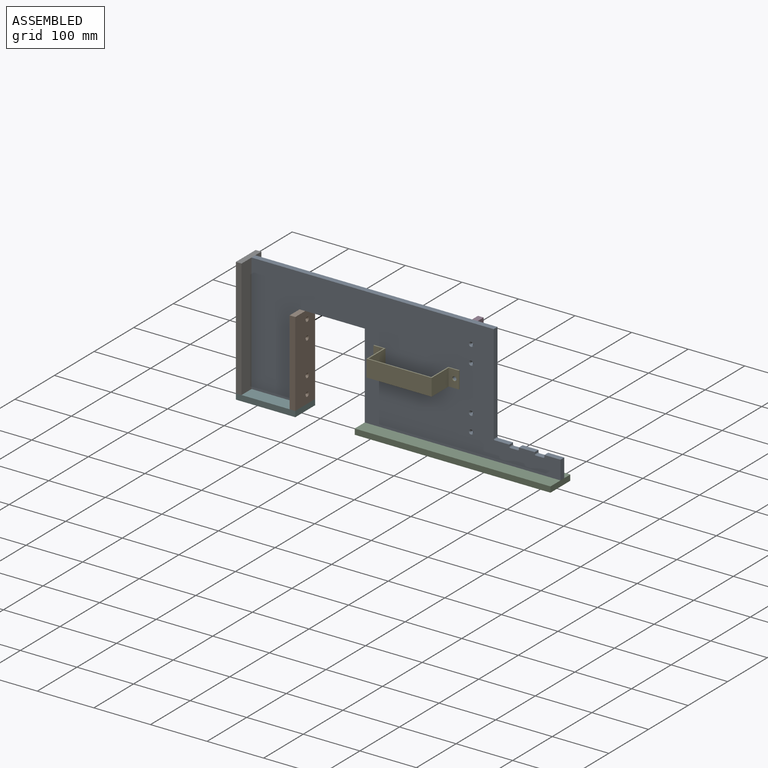
[diagram: assembled view]
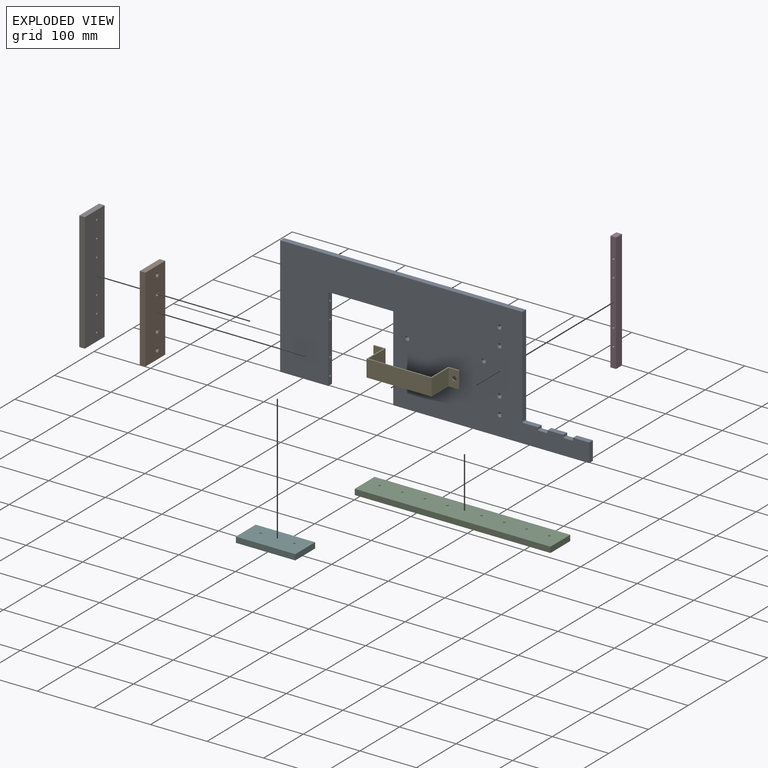
[diagram: exploded view]
GUIDED TOUR — MATED ASSEMBLY (Onshape document 2476796da958db2ca3bd45b9, AutoMate assembly 2476796da958db2ca3bd45b9_22bd7b3173679dbf847a679c_6d49762769f953038dab6788_default)

This assembly has 7 components, labeled P0..P6 below (a component is one placed occurrence of a part; the same part can appear more than once), held together by 14 mates. A mate is a constraint between two components; its type names the relative motion it leaves free:
  PARALLEL — keeps the two listed directions parallel,
  PLANAR — leaves sliding in the plane through the listed point (normal = the listed direction) and rotation about that normal free,
  SLIDER — leaves translation along the listed axis free.
Axis/direction vectors are unit vectors and 'through' points are millimeter coordinates, both in the assembly's world frame.

MATES
  1. PLANAR "Planar 3": P0 <-> P6, direction (-1.000, 0.000, 0.000) through (-434.63, 94.90, -322.70) mm
  2. PLANAR "Planar 6": P4 <-> P0, direction (0.000, 1.000, 0.000) through (-207.79, 90.18, -314.34) mm
  3. SLIDER "Slider 2": P6 <-> P0, axis (-1.000, 0.000, 0.000) through (-444.63, 94.90, -412.70) mm
  4. SLIDER "Slider 3": P2 <-> P0, axis (0.000, 0.000, -1.000) through (-211.63, 94.93, -437.70) mm
  5. PLANAR "Planar 2": P2 <-> P0, direction (0.000, 0.000, 1.000) through (-61.62, 89.92, -427.70) mm
  6. PLANAR "Planar 1": P5 <-> P0, direction (0.000, 0.000, 1.000) through (-392.12, 89.88, -427.70) mm
  7. SLIDER "Slider 11": P4 <-> P0, axis (0.000, -1.000, 0.000) through (-74.87, 88.19, -314.34) mm
  8. SLIDER "Slider 1": P0 <-> P5, axis (0.000, 0.000, -1.000) through (-422.13, 94.90, -427.70) mm
  9. SLIDER "Slider 10": P3 <-> P0, axis (0.000, -1.000, 0.000) through (-46.63, 99.70, -392.70) mm
  10. PLANAR "Planar 5": P0 <-> P3, direction (0.000, 1.000, 0.000) through (-191.30, 99.68, -320.28) mm
  11. SLIDER "Slider 9": P3 <-> P0, axis (0.000, -1.000, 0.000) through (-46.63, 99.70, -252.70) mm
  12. PLANAR "Planar 4": P0 <-> P1, direction (1.000, 0.000, 0.000) through (-349.63, 94.91, -352.70) mm
  13. PARALLEL "Parallel 1": P4 <-> P0, direction (-1.000, 0.000, 0.000) through (-217.87, 89.18, -314.34) mm
  14. SLIDER "Slider 8": P0 <-> P1, axis (1.000, 0.000, 0.000) through (-349.63, 94.91, -412.70) mm

ASSEMBLY ORDER
  1. P4 — the base component [order verified]
  2. P0 [order verified]
  3. P1 [order verified]
  4. P3 [order verified]
  5. P6 [order verified]
  6. P2 [order verified]
  7. P5 [order verified]
Order-tag legend:
  [order verified] — this step's position reverses a verified removal order: the component was checked to insert without passing through the ones already placed.

Of the 7 components, 2 carry the full construction recipe — the FeatureScript program that regenerates the part's solid from scratch; the rest are supplied as boundary geometry only.
Each toured component is shown spotlighted twice — in the assembled view, then in the exploded view, where a leader line traces a displaced component back to its assembled socket (saturated green if recipe-attached, orange if geometry-only; every other component desaturated gray) — followed by its recipe or geometry summary and the mates that hold it.
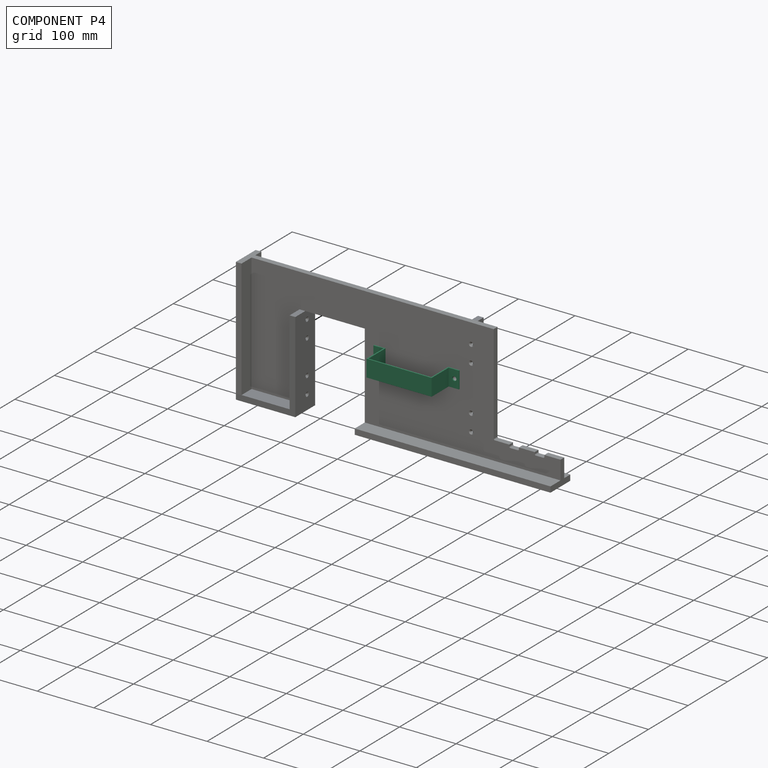
[diagram: component P4 — assembled]
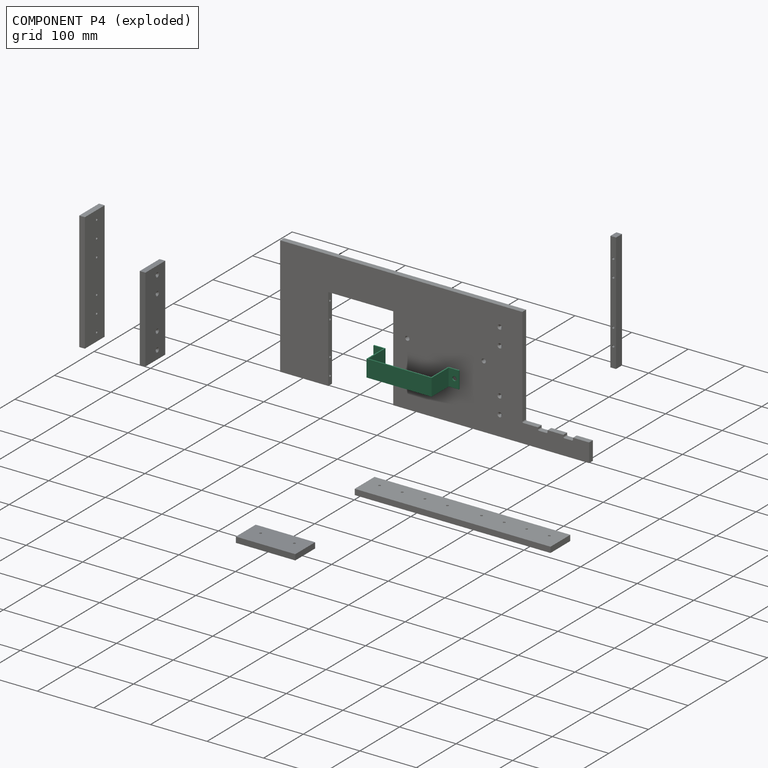
[diagram: component P4 — exploded]
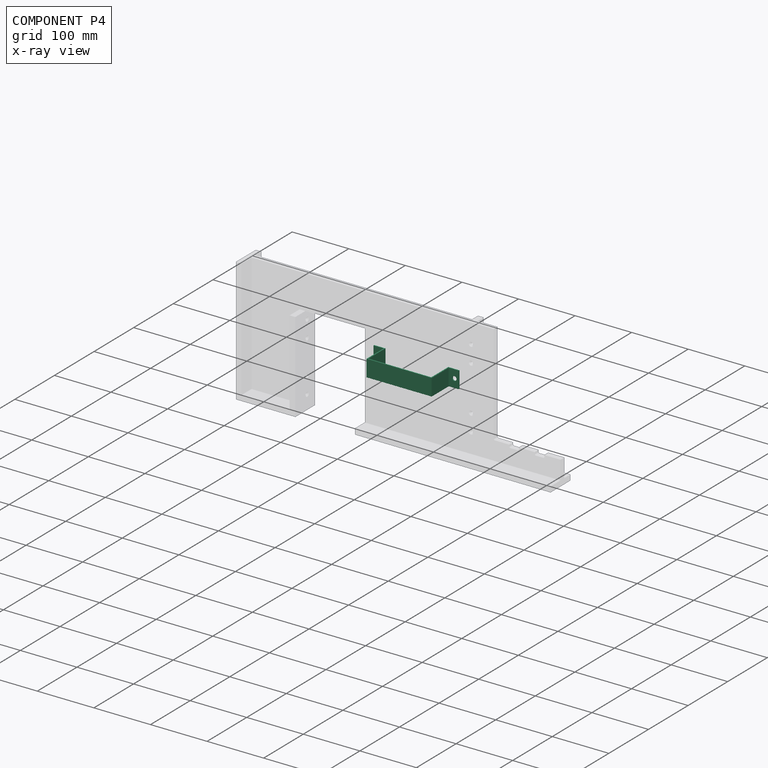
[diagram: component P4 — x-ray view]
COMPONENT P4 — recipe-attached (CADFS 00985563, mesh-verified: the recipe's output STEP matches this component's geometry to below the mesh-comparison resolution (tessellation chordal tolerance ~0.241 mm)).
Held by: PLANAR mate "Planar 6" to P0; SLIDER mate "Slider 11" to P0; PARALLEL mate "Parallel 1" to P0.
Construction recipe (FeatureScript — the CAD program that rebuilds this solid; sketch coordinates are in the units given by the * unit suffixes, e.g. mm):

FeatureScript 1511;
import(path : "onshape/std/geometry.fs", version : "1511.0");
import(path : "onshape/std/common.fs", version : "1511.0");
const mm = millimeter;
const VERTEX = EntityType.VERTEX;
const EDGE = EntityType.EDGE;
const FACE = EntityType.FACE;
const BODY = EntityType.BODY;
function v(x, y){return vector(x, y);}
function OD(order){return orderDisambiguation(order);}
function OSD(set){return originalSetDisambiguation(set);}
function TD(topology){return topologyDisambiguation(topology);}
function TDD(query){return trueDependencyDisambiguation(query);}
function sQuery(a, b, c) {return sketchEntityQuery(a, b, c);}

annotation { "Feature Type Name" : "Feature", "Feature Type Description" : "" }
export const myFeature = defineFeature(function(context is Context, id is Id, definition is map)
    precondition{}
    {
        {
            var Q0;
            Q0=qCreatedBy(makeId("Top.planeOp"),FACE);
            var sketch = newSketch(context, id + "F0", { "sketchPlane" : qUnion([Q0])});
            skLineSegment(sketch, "E0", {"start": v(-29.34, 22.52) * mm, "end": v(-11.34, 22.52) * mm});
            skLineSegment(sketch, "E1", {"start": v(-11.34, 22.52) * mm, "end": v(-11.34, 65.52) * mm});
            skLineSegment(sketch, "E2", {"start": v(-11.34, 65.52) * mm, "end": v(103.66, 65.52) * mm});
            skLineSegment(sketch, "E3", {"start": v(103.66, 65.52) * mm, "end": v(103.66, 22.52) * mm});
            skLineSegment(sketch, "E4", {"start": v(103.66, 22.52) * mm, "end": v(121.66, 22.52) * mm});
            skLineSegment(sketch, "E5", {"start": v(121.66, 22.52) * mm, "end": v(121.66, 20.52) * mm});
            skLineSegment(sketch, "E6", {"start": v(121.66, 20.52) * mm, "end": v(101.66, 20.52) * mm});
            skLineSegment(sketch, "E7", {"start": v(101.66, 20.52) * mm, "end": v(101.66, 63.52) * mm});
            skLineSegment(sketch, "E8", {"start": v(101.66, 63.52) * mm, "end": v(-9.34, 63.52) * mm});
            skLineSegment(sketch, "E9", {"start": v(-9.34, 63.52) * mm, "end": v(-9.34, 20.52) * mm});
            skLineSegment(sketch, "E10", {"start": v(-9.34, 20.52) * mm, "end": v(-29.34, 20.52) * mm});
            skLineSegment(sketch, "E11", {"start": v(-29.34, 20.52) * mm, "end": v(-29.34, 22.52) * mm});
            skSolve(sketch);
        }
        {
            var Q0;
            Q0 = qSketchRegion(id + "F0", true);
            extrude(context, id + "F1", {"entities" : qUnion([Q0]), "depth" : 30 * mm, "offsetDistance" : 25.4 * mm});
        }
        {
            var Q0;
            Q0=makeQuery(id+"F1.opExtrude","SWEPT_FACE",FACE,{"disambiguationData":[OSD([sQuery(id+"F0.wireOp",EDGE,"E0")])]});
            var sketch = newSketch(context, id + "F2", { "sketchPlane" : qUnion([Q0])});
            skCircle(sketch, "E12", {"center": v(20.34, 15) * mm, "radius": 3.76 * mm});
            skPoint(sketch, "E12.centerSnap0", {"position": v(20.34, 0) * mm});
            skPoint(sketch, "E12.centerSnap1", {"position": v(29.34, 15) * mm});
            skCircle(sketch, "E13", {"center": v(-113.66, 15) * mm, "radius": 3.68 * mm});
            skSolve(sketch);
        }
        {
            var Q0;
            Q0 = qSketchRegion(id + "F2", true);
            extrude(context, id + "F3", {"entities" : qUnion([Q0]), "operationType" : NewBodyOperationType.REMOVE, "endBound" : BoundingType.THROUGH_ALL, "oppositeDirection" : true, "depth" : 25.4 * mm, "offsetDistance" : 25.4 * mm});
        }
    });
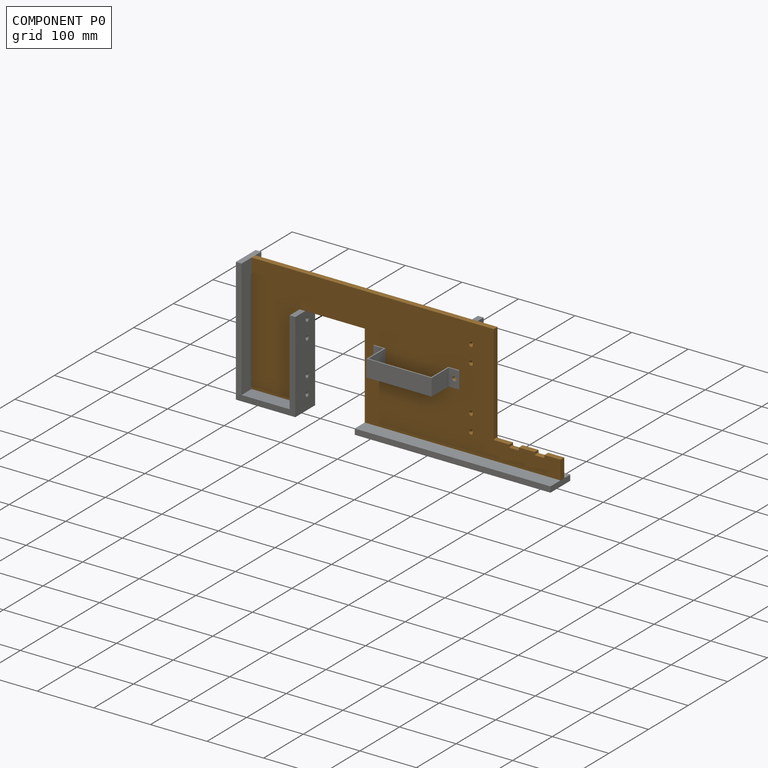
[diagram: component P0 — assembled]
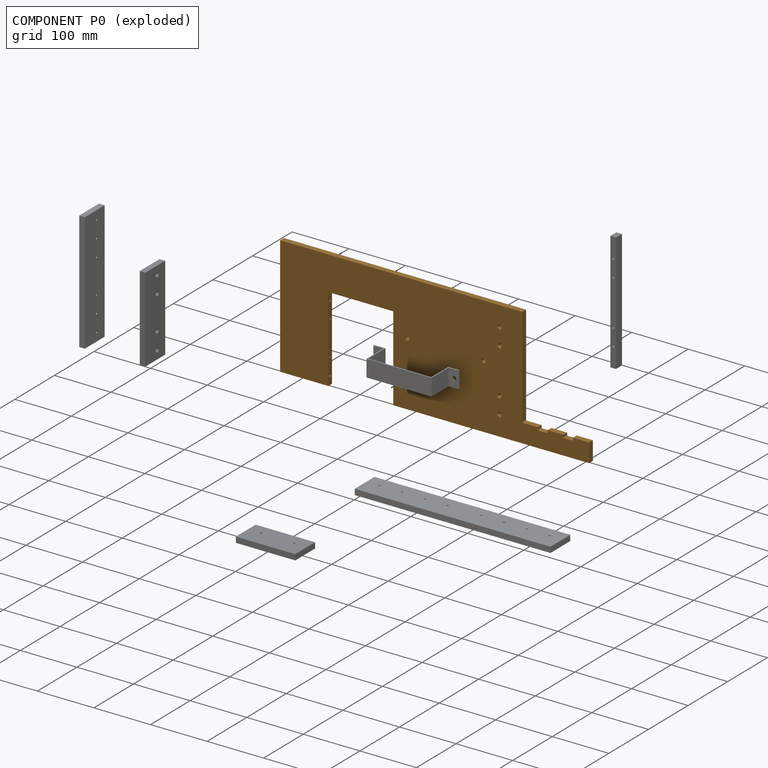
[diagram: component P0 — exploded]
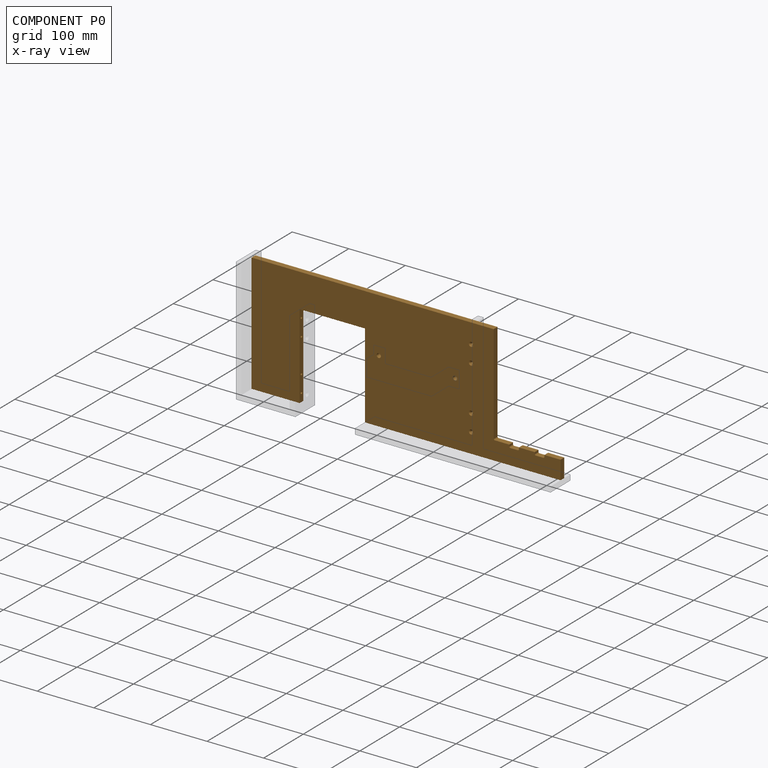
[diagram: component P0 — x-ray view]
COMPONENT P0 — geometry summary (no construction recipe available for this part):
  bounding box: 546.0 x 210.0 x 9.5 mm
  B-rep topology: 1 solid, 73 faces, 326 edges
  volume: 720226 mm^3 (66% of its bounding box)
  symmetry: mirror-symmetric across its y mid-plane
Held by: PLANAR mate "Planar 3" to P6; PLANAR mate "Planar 6" to P4; SLIDER mate "Slider 2" to P6; SLIDER mate "Slider 3" to P2; PLANAR mate "Planar 2" to P2; PLANAR mate "Planar 1" to P5; SLIDER mate "Slider 11" to P4; SLIDER mate "Slider 1" to P5; SLIDER mate "Slider 10" to P3; PLANAR mate "Planar 5" to P3; SLIDER mate "Slider 9" to P3; PLANAR mate "Planar 4" to P1; PARALLEL mate "Parallel 1" to P4; SLIDER mate "Slider 8" to P1.
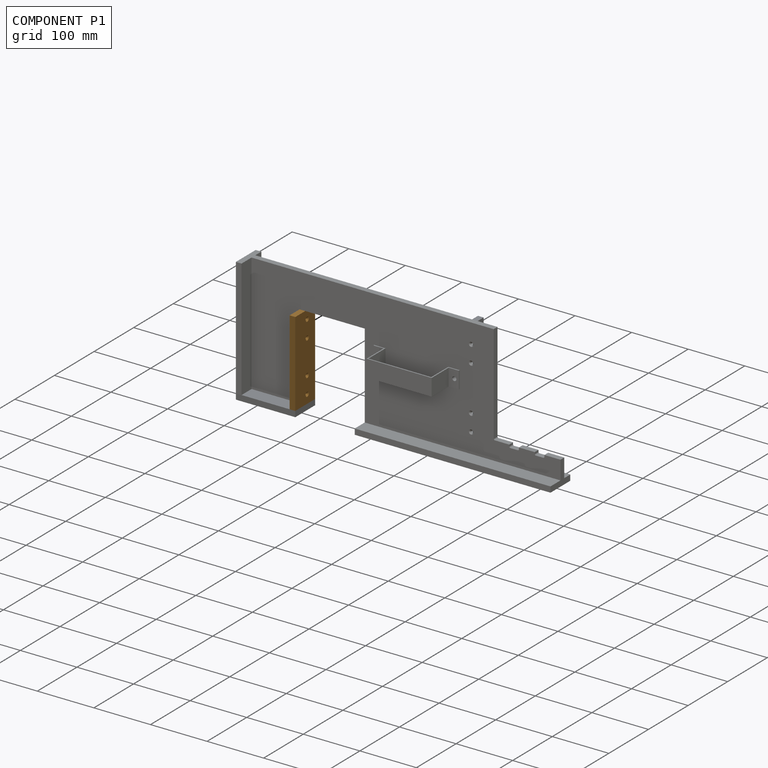
[diagram: component P1 — assembled]
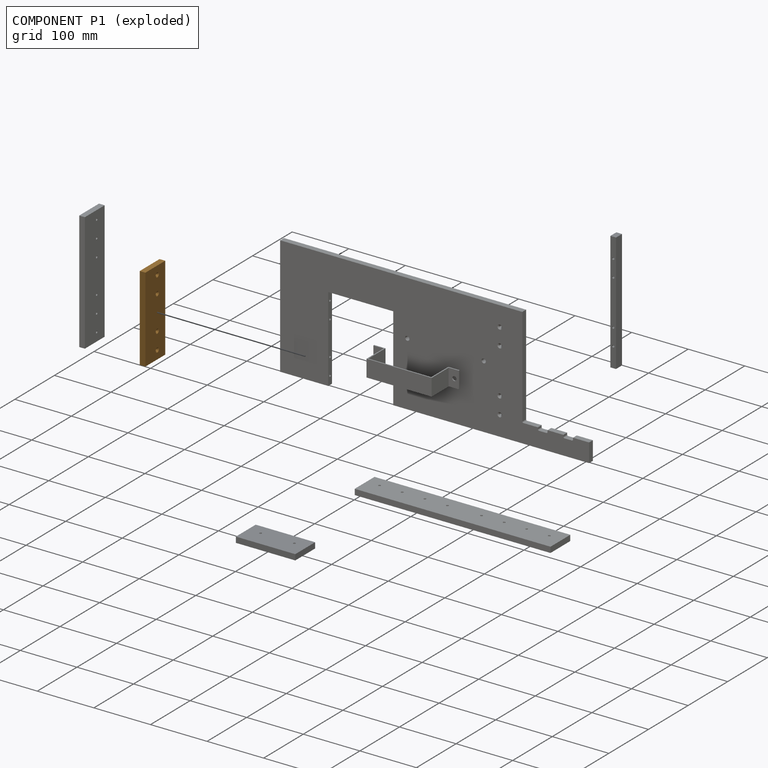
[diagram: component P1 — exploded]
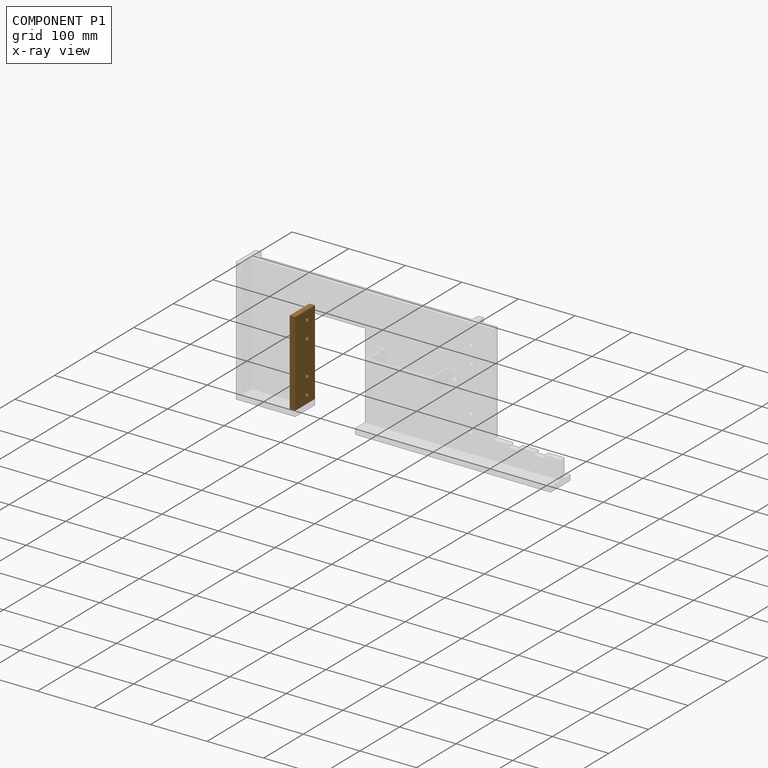
[diagram: component P1 — x-ray view]
COMPONENT P1 — geometry summary (no construction recipe available for this part):
  bounding box: 150.0 x 50.0 x 10.0 mm
  B-rep topology: 1 solid, 14 faces, 64 edges
  volume: 74363 mm^3 (99% of its bounding box)
  symmetry: mirror-symmetric across its x mid-plane
Held by: PLANAR mate "Planar 4" to P0; SLIDER mate "Slider 8" to P0.
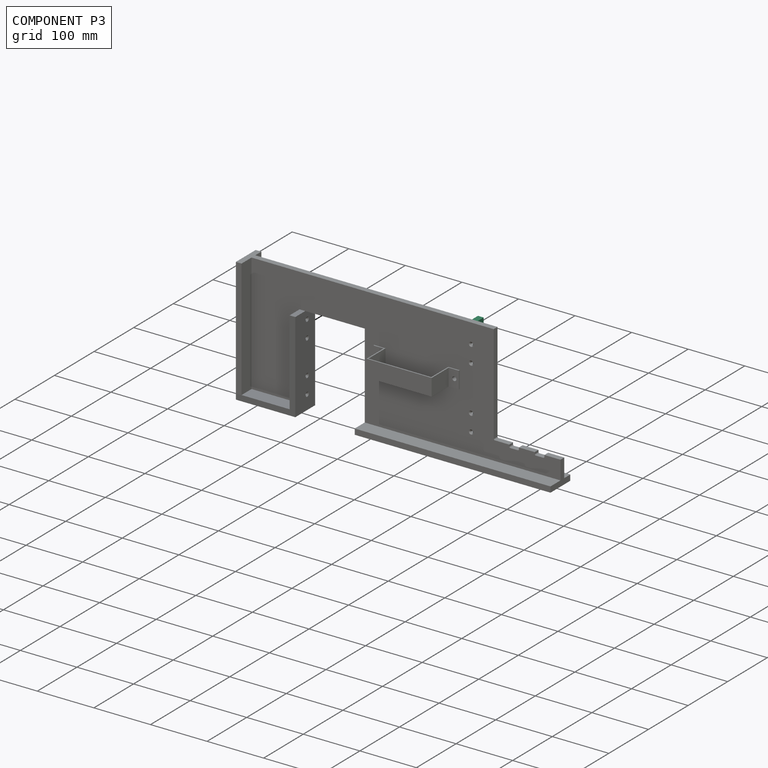
[diagram: component P3 — assembled]
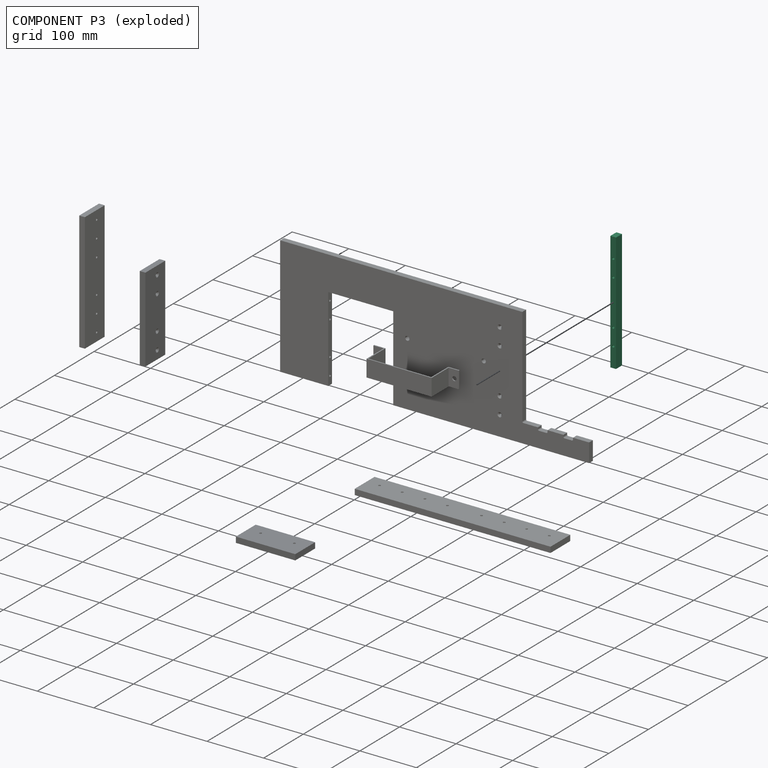
[diagram: component P3 — exploded]
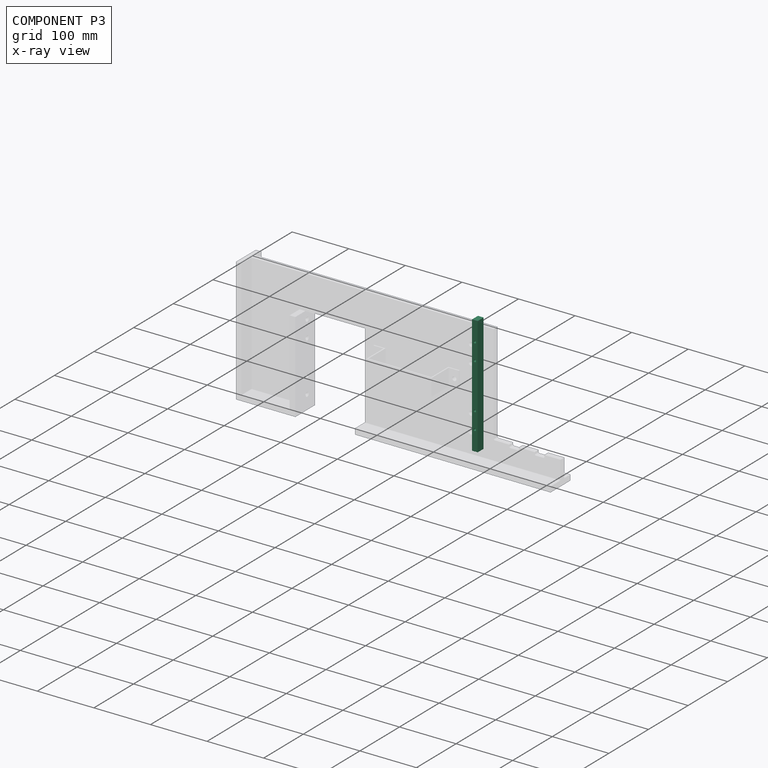
[diagram: component P3 — x-ray view]
COMPONENT P3 — recipe-attached (CADFS 00985557, mesh-verified: the recipe's output STEP matches this component's geometry to below the mesh-comparison resolution (tessellation chordal tolerance ~0.316 mm)).
Held by: SLIDER mate "Slider 10" to P0; PLANAR mate "Planar 5" to P0; SLIDER mate "Slider 9" to P0.
Construction recipe (FeatureScript — the CAD program that rebuilds this solid; sketch coordinates are in the units given by the * unit suffixes, e.g. mm):

FeatureScript 1511;
import(path : "onshape/std/geometry.fs", version : "1511.0");
import(path : "onshape/std/common.fs", version : "1511.0");
const mm = millimeter;
const VERTEX = EntityType.VERTEX;
const EDGE = EntityType.EDGE;
const FACE = EntityType.FACE;
const BODY = EntityType.BODY;
function v(x, y){return vector(x, y);}
function OD(order){return orderDisambiguation(order);}
function OSD(set){return originalSetDisambiguation(set);}
function TD(topology){return topologyDisambiguation(topology);}
function TDD(query){return trueDependencyDisambiguation(query);}
function sQuery(a, b, c) {return sketchEntityQuery(a, b, c);}

annotation { "Feature Type Name" : "Feature", "Feature Type Description" : "" }
export const myFeature = defineFeature(function(context is Context, id is Id, definition is map)
    precondition{}
    {
        {
            var Q0;
            Q0=qCreatedBy(makeId("Top.planeOp"),FACE);
            var sketch = newSketch(context, id + "F0", { "sketchPlane" : qUnion([Q0])});
            skLineSegment(sketch, "E0.bottom", {"start": v(105, -7.5) * mm, "end": v(-105, -7.5) * mm});
            skLineSegment(sketch, "E0.top", {"start": v(105, 7.5) * mm, "end": v(-105, 7.5) * mm});
            skLineSegment(sketch, "E0.left", {"start": v(105, -7.5) * mm, "end": v(105, 7.5) * mm});
            skLineSegment(sketch, "E0.right", {"start": v(-105, -7.5) * mm, "end": v(-105, 7.5) * mm});
            skPoint(sketch, "E0.middle", {"position": v(0, 0) * mm});
            skSolve(sketch);
        }
        {
            var Q0;
            Q0=makeQuery(id+"F0.imprint","IMPRINT",FACE,{"disambiguationData":[TD([[makeQuery(id+"F0.imprint","IMPRINT",EDGE,{"derivedFrom":sQuery(id+"F0.wireOp",EDGE,"E0.bottom")}),-1.0]])]});
            extrude(context, id + "F1", {"entities" : qUnion([Q0]), "depth" : 10 * mm, "offsetDistance" : 25.4 * mm});
        }
        {
            var Q0;
            Q0=makeQuery(id+"F1.opExtrude","SWEPT_FACE",FACE,{"disambiguationData":[OSD([sQuery(id+"F0.wireOp",EDGE,"E0.bottom")])]});
            var sketch = newSketch(context, id + "F2", { "sketchPlane" : qUnion([Q0])});
            skLineSegment(sketch, "E1", {"start": v(82.51, 5) * mm, "end": v(-96.88, 5) * mm});
            skPoint(sketch, "E1.startSnap0", {"position": v(105, 5) * mm});
            skLineSegment(sketch, "E2", {"start": v(0, 30.57) * mm, "end": v(0, -40.25) * mm});
            skPoint(sketch, "E2.startSnap0", {"position": v(0, 10) * mm});
            skCircle(sketch, "E3", {"center": v(-70, 5) * mm, "radius": 2 * mm});
            skCircle(sketch, "E4", {"center": v(-40, 5) * mm, "radius": 2 * mm});
            skCircle(sketch, "E5", {"center": v(40, 5) * mm, "radius": 2 * mm});
            skCircle(sketch, "E6", {"center": v(70, 5) * mm, "radius": 2 * mm});
            skSolve(sketch);
        }
        {
            var Q0;
            {var subQ0=sQuery(id+"F2.wireOp",EDGE,"E3");var subQ1=sQuery(id+"F2.wireOp",EDGE,"E1");var subQ2=makeQuery(id+"F2.imprint","INTERSECT",VERTEX,{"disambiguationData":[OD(0.0)],"derivedFrom":[subQ1,subQ0]});Q0=makeQuery(id+"F2.imprint","IMPRINT",FACE,{"disambiguationData":[TD([[makeQuery(id+"F2.imprint","IMPRINT",EDGE,{"disambiguationData":[TD([[subQ2,-1.0]])],"derivedFrom":subQ1}),1.0]])]});}
            var Q1;
            {var subQ0=sQuery(id+"F2.wireOp",EDGE,"E3");var subQ1=sQuery(id+"F2.wireOp",EDGE,"E1");var subQ2=makeQuery(id+"F2.imprint","INTERSECT",VERTEX,{"disambiguationData":[OD(0.0)],"derivedFrom":[subQ1,subQ0]});Q1=makeQuery(id+"F2.imprint","IMPRINT",FACE,{"disambiguationData":[TD([[makeQuery(id+"F2.imprint","IMPRINT",EDGE,{"disambiguationData":[TD([[subQ2,-1.0]])],"derivedFrom":subQ1}),-1.0]])]});}
            var Q2;
            {var subQ0=sQuery(id+"F2.wireOp",EDGE,"E4");var subQ1=sQuery(id+"F2.wireOp",EDGE,"E1");var subQ2=makeQuery(id+"F2.imprint","INTERSECT",VERTEX,{"disambiguationData":[OD(0.0)],"derivedFrom":[subQ1,subQ0]});Q2=makeQuery(id+"F2.imprint","IMPRINT",FACE,{"disambiguationData":[TD([[makeQuery(id+"F2.imprint","IMPRINT",EDGE,{"disambiguationData":[TD([[subQ2,-1.0]])],"derivedFrom":subQ1}),-1.0]])]});}
            var Q3;
            {var subQ0=sQuery(id+"F2.wireOp",EDGE,"E4");var subQ1=sQuery(id+"F2.wireOp",EDGE,"E1");var subQ2=makeQuery(id+"F2.imprint","INTERSECT",VERTEX,{"disambiguationData":[OD(0.0)],"derivedFrom":[subQ1,subQ0]});Q3=makeQuery(id+"F2.imprint","IMPRINT",FACE,{"disambiguationData":[TD([[makeQuery(id+"F2.imprint","IMPRINT",EDGE,{"disambiguationData":[TD([[subQ2,-1.0]])],"derivedFrom":subQ1}),1.0]])]});}
            var Q4;
            {var subQ0=sQuery(id+"F2.wireOp",EDGE,"E5");var subQ1=sQuery(id+"F2.wireOp",EDGE,"E1");var subQ2=makeQuery(id+"F2.imprint","INTERSECT",VERTEX,{"disambiguationData":[OD(0.0)],"derivedFrom":[subQ1,subQ0]});Q4=makeQuery(id+"F2.imprint","IMPRINT",FACE,{"disambiguationData":[TD([[makeQuery(id+"F2.imprint","IMPRINT",EDGE,{"disambiguationData":[TD([[subQ2,-1.0]])],"derivedFrom":subQ1}),-1.0]])]});}
            var Q5;
            {var subQ0=sQuery(id+"F2.wireOp",EDGE,"E5");var subQ1=sQuery(id+"F2.wireOp",EDGE,"E1");var subQ2=makeQuery(id+"F2.imprint","INTERSECT",VERTEX,{"disambiguationData":[OD(0.0)],"derivedFrom":[subQ1,subQ0]});Q5=makeQuery(id+"F2.imprint","IMPRINT",FACE,{"disambiguationData":[TD([[makeQuery(id+"F2.imprint","IMPRINT",EDGE,{"disambiguationData":[TD([[subQ2,-1.0]])],"derivedFrom":subQ1}),1.0]])]});}
            var Q6;
            {var subQ0=sQuery(id+"F2.wireOp",EDGE,"E6");var subQ1=sQuery(id+"F2.wireOp",EDGE,"E1");var subQ2=makeQuery(id+"F2.imprint","INTERSECT",VERTEX,{"disambiguationData":[OD(0.0)],"derivedFrom":[subQ1,subQ0]});Q6=makeQuery(id+"F2.imprint","IMPRINT",FACE,{"disambiguationData":[TD([[makeQuery(id+"F2.imprint","IMPRINT",EDGE,{"disambiguationData":[TD([[subQ2,-1.0]])],"derivedFrom":subQ1}),-1.0]])]});}
            var Q7;
            {var subQ0=sQuery(id+"F2.wireOp",EDGE,"E6");var subQ1=sQuery(id+"F2.wireOp",EDGE,"E1");var subQ2=makeQuery(id+"F2.imprint","INTERSECT",VERTEX,{"disambiguationData":[OD(0.0)],"derivedFrom":[subQ1,subQ0]});Q7=makeQuery(id+"F2.imprint","IMPRINT",FACE,{"disambiguationData":[TD([[makeQuery(id+"F2.imprint","IMPRINT",EDGE,{"disambiguationData":[TD([[subQ2,-1.0]])],"derivedFrom":subQ1}),1.0]])]});}
            var Q8;
            {var subQ0=sQuery(id+"F2.wireOp",EDGE,"E5");var subQ1=sQuery(id+"F2.wireOp",EDGE,"E1");var subQ2=makeQuery(id+"F2.imprint","INTERSECT",VERTEX,{"disambiguationData":[OD(0.0)],"derivedFrom":[subQ1,subQ0]});Q8=makeQuery(id+"F2.imprint","IMPRINT",FACE,{"disambiguationData":[TD([[makeQuery(id+"F2.imprint","IMPRINT",EDGE,{"disambiguationData":[TD([[subQ2,1.0]])],"derivedFrom":subQ1}),-1.0]])]});}
            var Q9;
            {var subQ0=sQuery(id+"F2.wireOp",EDGE,"E5");var subQ1=sQuery(id+"F2.wireOp",EDGE,"E1");var subQ2=makeQuery(id+"F2.imprint","INTERSECT",VERTEX,{"disambiguationData":[OD(0.0)],"derivedFrom":[subQ1,subQ0]});Q9=makeQuery(id+"F2.imprint","IMPRINT",FACE,{"disambiguationData":[TD([[makeQuery(id+"F2.imprint","IMPRINT",EDGE,{"disambiguationData":[TD([[subQ2,1.0]])],"derivedFrom":subQ1}),1.0]])]});}
            var Q10;
            {var subQ0=sQuery(id+"F2.wireOp",EDGE,"E6");var subQ1=sQuery(id+"F2.wireOp",EDGE,"E1");var subQ2=makeQuery(id+"F2.imprint","INTERSECT",VERTEX,{"disambiguationData":[OD(0.0)],"derivedFrom":[subQ1,subQ0]});Q10=makeQuery(id+"F2.imprint","IMPRINT",FACE,{"disambiguationData":[TD([[makeQuery(id+"F2.imprint","IMPRINT",EDGE,{"disambiguationData":[TD([[subQ2,1.0]])],"derivedFrom":subQ1}),-1.0]])]});}
            var Q11;
            {var subQ0=sQuery(id+"F2.wireOp",EDGE,"E6");var subQ1=sQuery(id+"F2.wireOp",EDGE,"E1");var subQ2=makeQuery(id+"F2.imprint","INTERSECT",VERTEX,{"disambiguationData":[OD(0.0)],"derivedFrom":[subQ1,subQ0]});Q11=makeQuery(id+"F2.imprint","IMPRINT",FACE,{"disambiguationData":[TD([[makeQuery(id+"F2.imprint","IMPRINT",EDGE,{"disambiguationData":[TD([[subQ2,1.0]])],"derivedFrom":subQ1}),1.0]])]});}
            var Q12;
            {var subQ0=sQuery(id+"F2.wireOp",EDGE,"E4");var subQ1=sQuery(id+"F2.wireOp",EDGE,"E1");var subQ2=makeQuery(id+"F2.imprint","INTERSECT",VERTEX,{"disambiguationData":[OD(0.0)],"derivedFrom":[subQ1,subQ0]});Q12=makeQuery(id+"F2.imprint","IMPRINT",FACE,{"disambiguationData":[TD([[makeQuery(id+"F2.imprint","IMPRINT",EDGE,{"disambiguationData":[TD([[subQ2,1.0]])],"derivedFrom":subQ1}),-1.0]])]});}
            var Q13;
            {var subQ0=sQuery(id+"F2.wireOp",EDGE,"E4");var subQ1=sQuery(id+"F2.wireOp",EDGE,"E1");var subQ2=makeQuery(id+"F2.imprint","INTERSECT",VERTEX,{"disambiguationData":[OD(0.0)],"derivedFrom":[subQ1,subQ0]});Q13=makeQuery(id+"F2.imprint","IMPRINT",FACE,{"disambiguationData":[TD([[makeQuery(id+"F2.imprint","IMPRINT",EDGE,{"disambiguationData":[TD([[subQ2,1.0]])],"derivedFrom":subQ1}),1.0]])]});}
            var Q14;
            {var subQ0=sQuery(id+"F2.wireOp",EDGE,"E3");var subQ1=sQuery(id+"F2.wireOp",EDGE,"E1");var subQ2=makeQuery(id+"F2.imprint","INTERSECT",VERTEX,{"disambiguationData":[OD(0.0)],"derivedFrom":[subQ1,subQ0]});Q14=makeQuery(id+"F2.imprint","IMPRINT",FACE,{"disambiguationData":[TD([[makeQuery(id+"F2.imprint","IMPRINT",EDGE,{"disambiguationData":[TD([[subQ2,1.0]])],"derivedFrom":subQ1}),-1.0]])]});}
            var Q15;
            {var subQ0=sQuery(id+"F2.wireOp",EDGE,"E3");var subQ1=sQuery(id+"F2.wireOp",EDGE,"E1");var subQ2=makeQuery(id+"F2.imprint","INTERSECT",VERTEX,{"disambiguationData":[OD(0.0)],"derivedFrom":[subQ1,subQ0]});Q15=makeQuery(id+"F2.imprint","IMPRINT",FACE,{"disambiguationData":[TD([[makeQuery(id+"F2.imprint","IMPRINT",EDGE,{"disambiguationData":[TD([[subQ2,1.0]])],"derivedFrom":subQ1}),1.0]])]});}
            extrude(context, id + "F3", {"entities" : qUnion([Q0, Q1, Q2, Q3, Q4, Q5, Q6, Q7, Q8, Q9, Q10, Q11, Q12, Q13, Q14, Q15]), "operationType" : NewBodyOperationType.REMOVE, "oppositeDirection" : true, "depth" : 10 * mm, "offsetDistance" : 25.4 * mm});
        }
    });
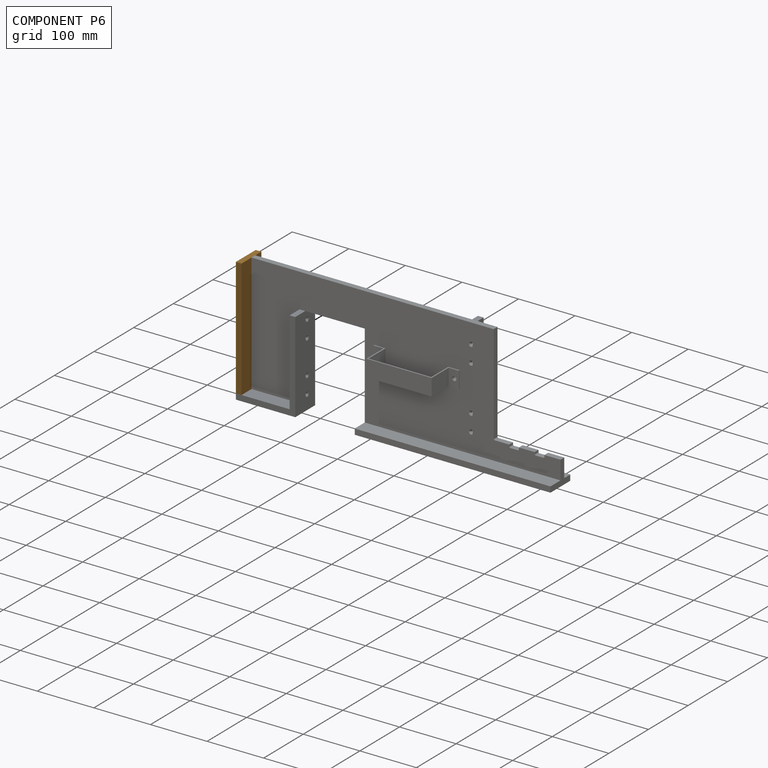
[diagram: component P6 — assembled]
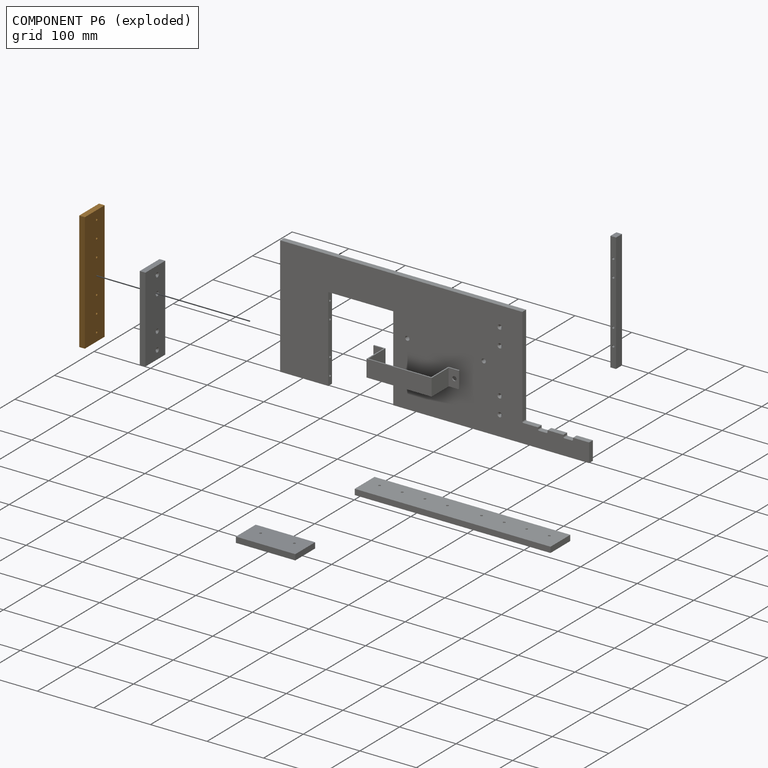
[diagram: component P6 — exploded]
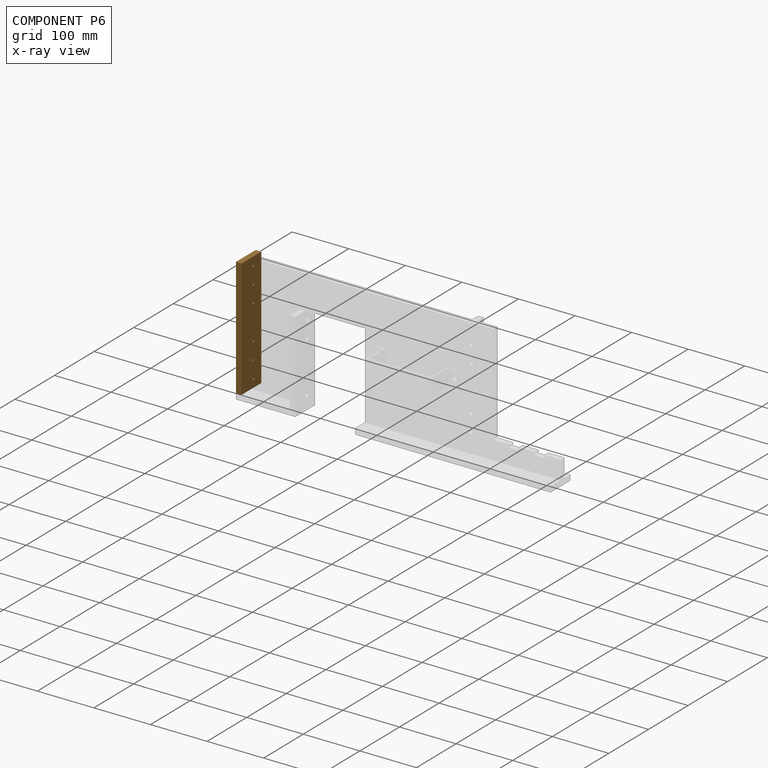
[diagram: component P6 — x-ray view]
COMPONENT P6 — geometry summary (no construction recipe available for this part):
  bounding box: 210.0 x 50.0 x 10.0 mm
  B-rep topology: 1 solid, 18 faces, 84 edges
  volume: 104045 mm^3 (99% of its bounding box)
  symmetry: 2-fold rotationally symmetric about the y axis; mirror-symmetric across its x mid-plane, z mid-plane
Held by: PLANAR mate "Planar 3" to P0; SLIDER mate "Slider 2" to P0.
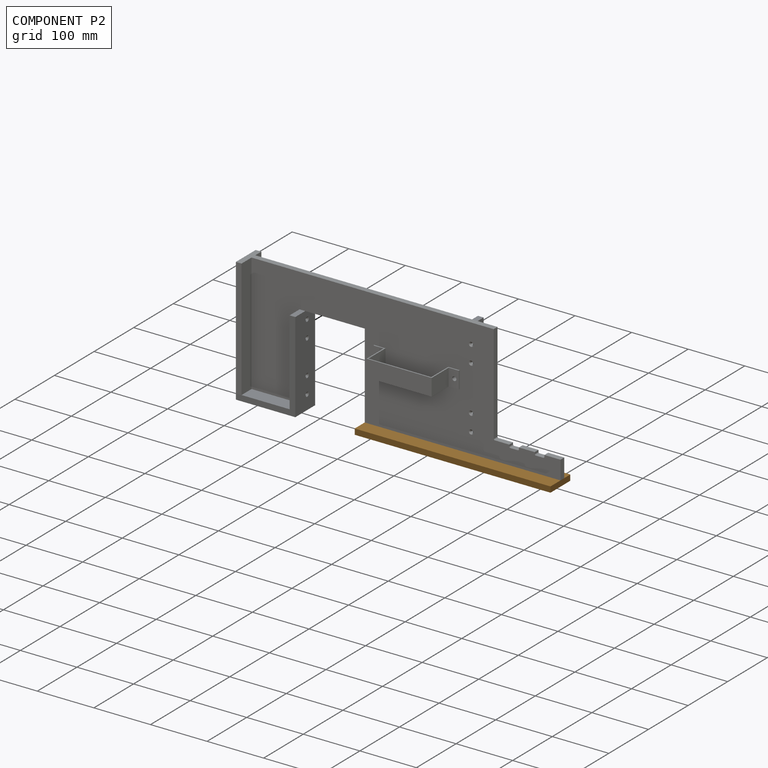
[diagram: component P2 — assembled]
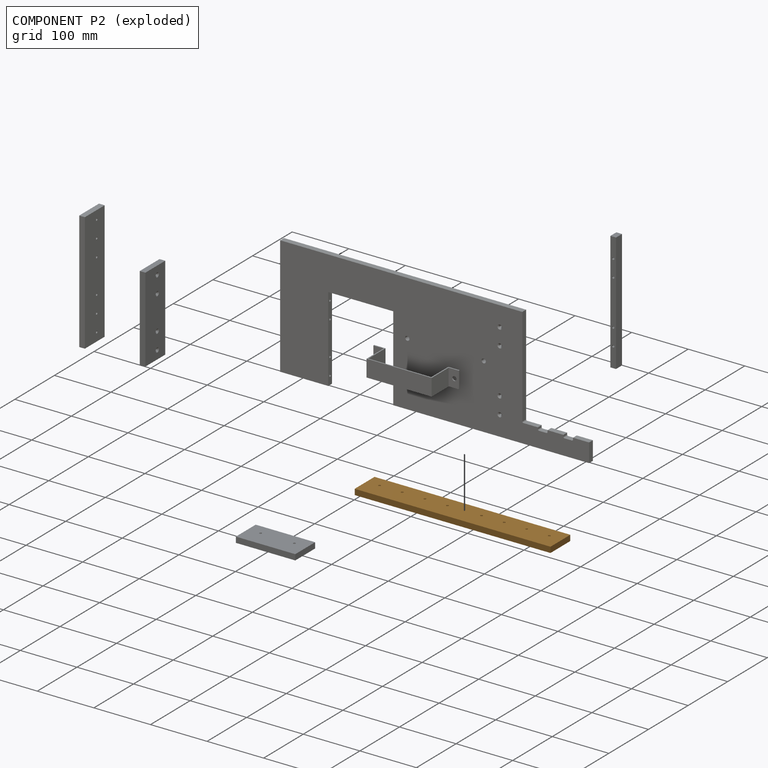
[diagram: component P2 — exploded]
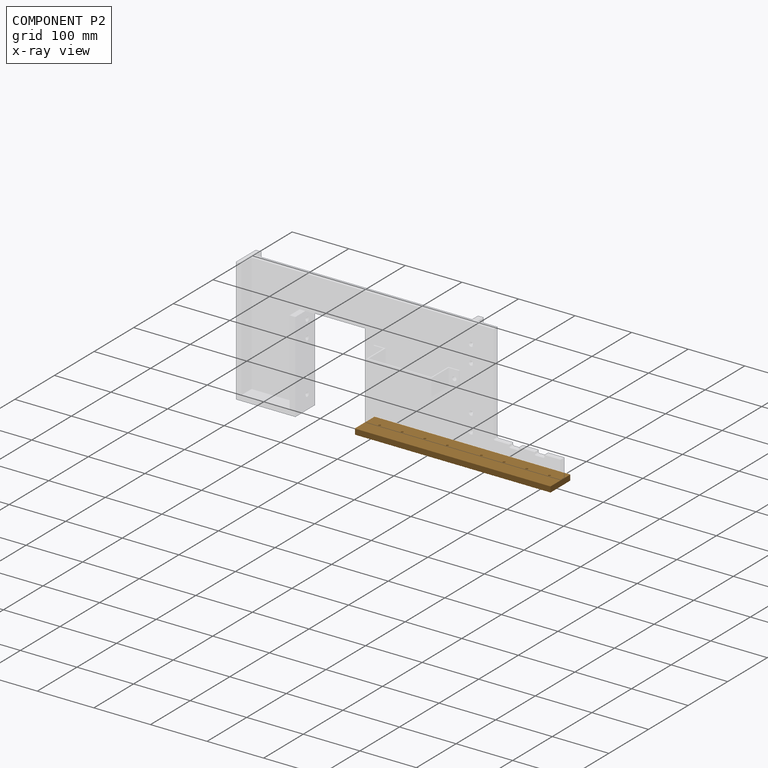
[diagram: component P2 — x-ray view]
COMPONENT P2 — geometry summary (no construction recipe available for this part):
  bounding box: 346.0 x 50.0 x 10.0 mm
  B-rep topology: 1 solid, 22 faces, 104 edges
  volume: 171727 mm^3 (99% of its bounding box)
  symmetry: 2-fold rotationally symmetric about the z axis; mirror-symmetric across its x mid-plane, y mid-plane
Held by: SLIDER mate "Slider 3" to P0; PLANAR mate "Planar 2" to P0.
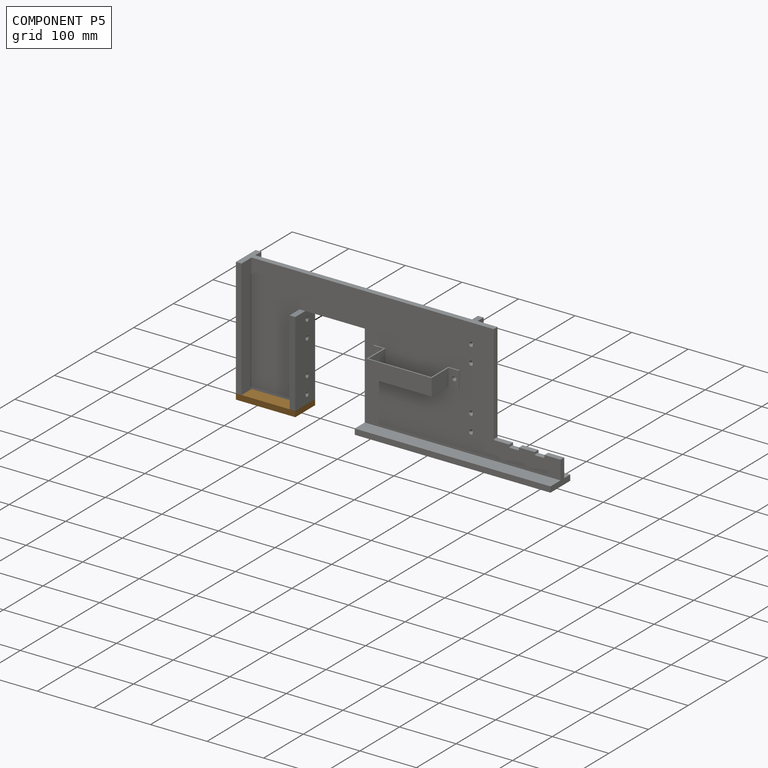
[diagram: component P5 — assembled]
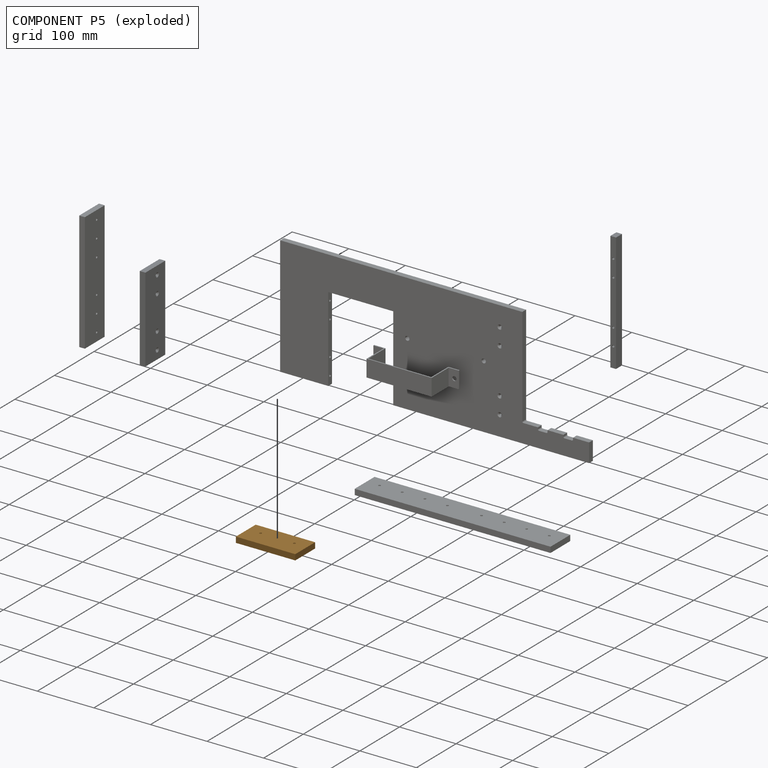
[diagram: component P5 — exploded]
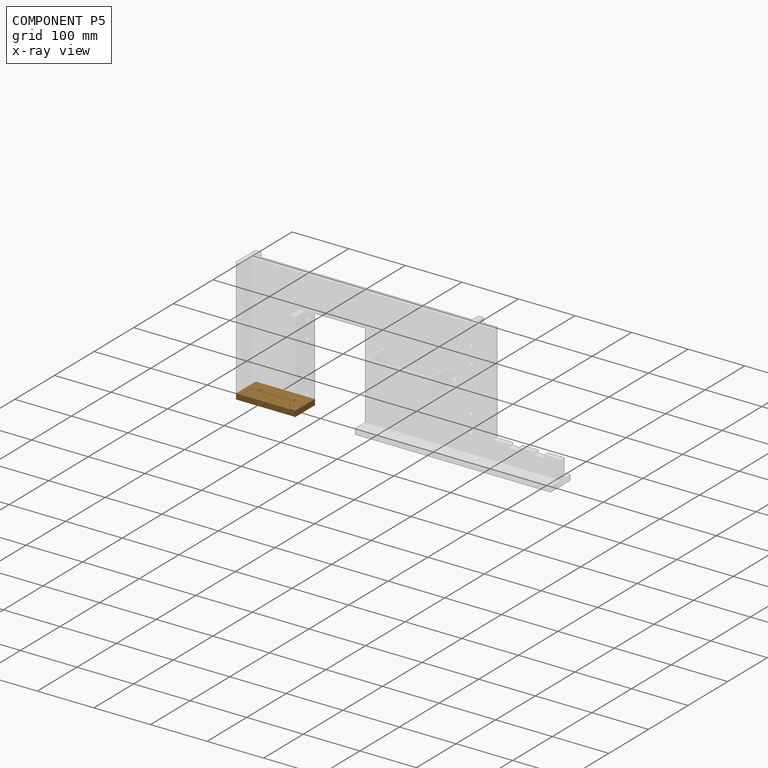
[diagram: component P5 — x-ray view]
COMPONENT P5 — geometry summary (no construction recipe available for this part):
  bounding box: 105.0 x 50.0 x 10.0 mm
  B-rep topology: 1 solid, 10 faces, 44 edges
  volume: 52182 mm^3 (99% of its bounding box)
  symmetry: mirror-symmetric across its x mid-plane
Held by: PLANAR mate "Planar 1" to P0; SLIDER mate "Slider 1" to P0.
PROVENANCE & LICENSES
Assembly (occurrences, transforms, mates, per-part STEP geometry): AutoMate dataset, Zenodo record 7776208, CC0.
Construction recipes: CADFS (HuggingFace VladPyatov/CADFS, CC-BY-4.0, layered over the ABC dataset), FeatureScript reconstruction programs keyed by ABC model id.
Join: ABC meta listings map ABC model id -> Onshape documentId; within a shared document, parts are matched by geometric signature (bounding-box dims + volume at 0.1% relative tolerance, exact B-rep face/solid counts).
Verification: 2 of this assembly's 7 components carry a recipe attachment, and every attachment is mesh-verified: the CADFS STEP and the AutoMate member STEP were compared as meshes in their shared local frame (symmetric sampled-point-to-mesh distance); worst across the 2 attachments: below the mesh-comparison resolution (tessellation chordal tolerance ~0.316 mm) on a 211 mm part.
Renders: orthographic iso camera (az 35 / el 25); the floor grid conveys scale (grid pitch printed in each image; no ruler). In the exploded view each component is displaced by its stored offset vector: the offsets alone carry the explosion direction (mate normal/axis signs are not orientation cues and do not encode it), and separation distances are assigned per mate-chain, not proportionally to assembly-order depth.
